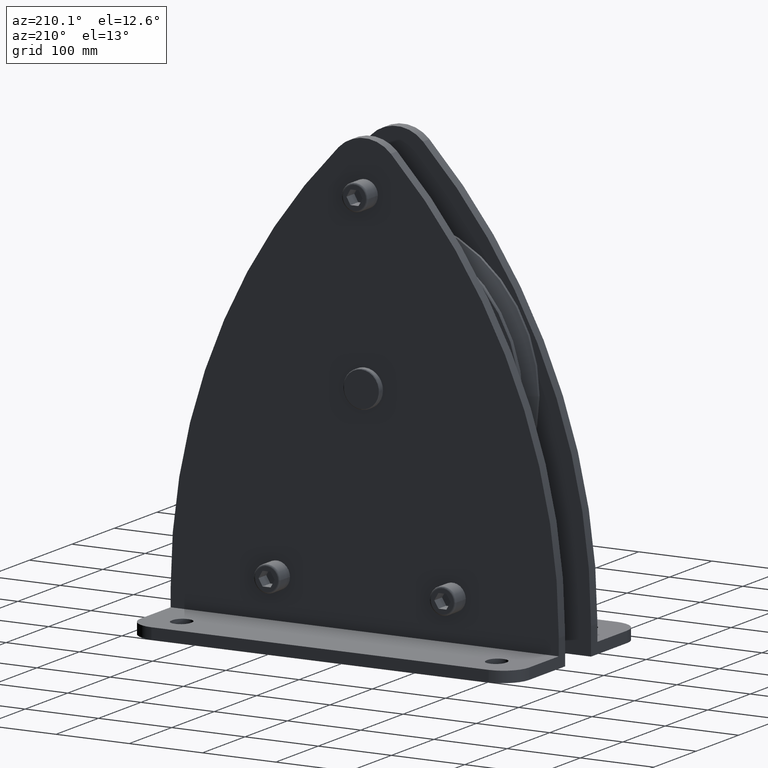
[diagram: clean part render]
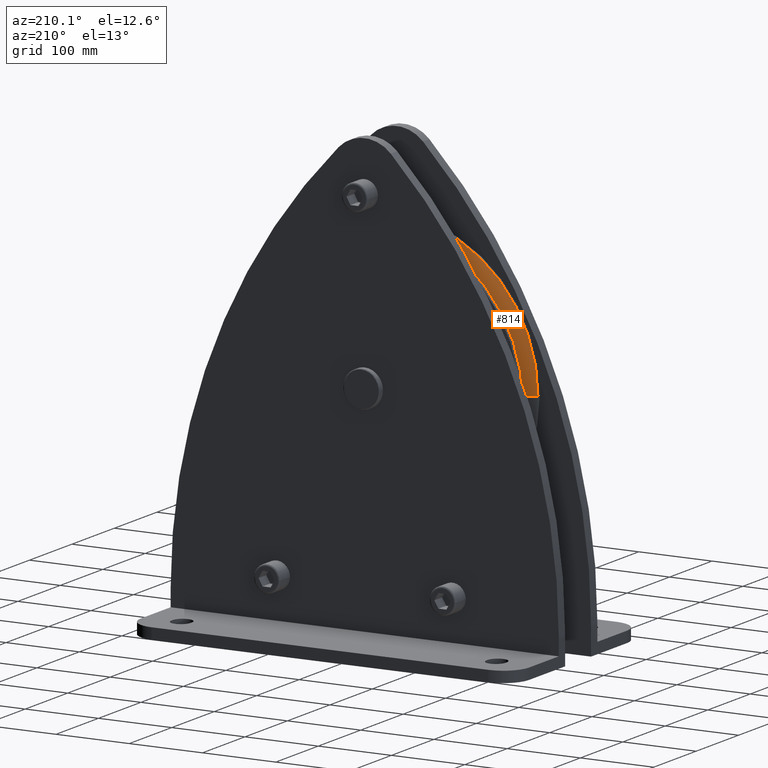
[diagram: same view with one face highlighted and labeled with its STEP entity id]
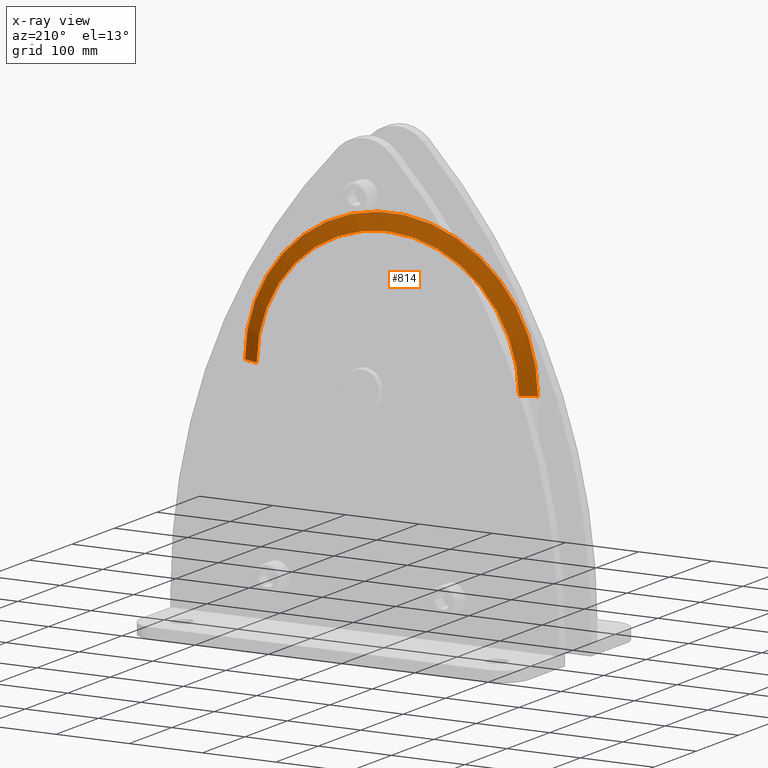
[diagram: x-ray of the same camera — body ghosted, the highlighted face saturated]
A machine part, auxiliary view. The second image highlights one B-rep face of the part: STEP entity #814.
The next image is the same camera in x-ray: the body ghosted, the highlighted face saturated — about 0% of this face is hidden behind the body in this view.
In plain terms, the highlighted conical surface has half-angle 67.5 deg.
Its self-contained STEP definition (entity closure, byte-faithful):
#814=ADVANCED_FACE('',(#2194),#2195,.T.);
#2194=FACE_OUTER_BOUND('',#4226,.T.);
#2195=CONICAL_SURFACE('',#4227,189.4939855,1.17809722010449);
#4226=EDGE_LOOP('',(#6772,#6773,#6774,#6775));
#4227=AXIS2_PLACEMENT_3D('',#6776,#6777,#6778);
#6772=ORIENTED_EDGE('',*,*,#12535,.F.);
#6773=ORIENTED_EDGE('',*,*,#12155,.T.);
#6774=ORIENTED_EDGE('',*,*,#12536,.F.);
#6775=ORIENTED_EDGE('',*,*,#12482,.F.);
#6776=CARTESIAN_POINT('',(0.0,-13.313365,0.0));
#6777=DIRECTION('',(-0.0,-1.0,0.0));
#6778=DIRECTION('',(1.0,0.0,0.0));
#12155=EDGE_CURVE('',#14606,#14604,#14607,.T.);
#12482=EDGE_CURVE('',#15153,#15156,#15157,.T.);
#12535=EDGE_CURVE('',#14606,#15153,#15237,.T.);
#12536=EDGE_CURVE('',#15156,#14604,#15238,.T.);
#14604=VERTEX_POINT('',#19361);
#14606=VERTEX_POINT('',#19363);
#14607=CIRCLE('',#19364,178.987971);
#15153=VERTEX_POINT('',#21991);
#15156=VERTEX_POINT('',#21995);
#15157=CIRCLE('',#21996,200.0);
#15237=LINE('',#22093,#22094);
#15238=LINE('',#22095,#22096);
#19361=CARTESIAN_POINT('',(-178.987971,-8.961631,2.19197045771029E-014));
#19363=CARTESIAN_POINT('',(178.987971,-8.961631,0.0));
#19364=AXIS2_PLACEMENT_3D('',#26921,#26922,#26923);
#21991=CARTESIAN_POINT('',(200.0,-17.665099,0.0));
#21995=CARTESIAN_POINT('',(-200.0,-17.665099,2.44929359829471E-014));
#21996=AXIS2_PLACEMENT_3D('',#27376,#27377,#27378);
#22093=CARTESIAN_POINT('',(189.4939855,-13.313365,-2.3206320280025E-014));
#22094=VECTOR('',#27465,1.0);
#22095=CARTESIAN_POINT('',(-189.4939855,-13.313365,2.3206320280025E-014));
#22096=VECTOR('',#27466,1.0);
#26921=CARTESIAN_POINT('',(0.0,-8.961631,0.0));
#26922=DIRECTION('',(0.0,-1.0,0.0));
#26923=DIRECTION('',(1.0,0.0,0.0));
#27376=CARTESIAN_POINT('',(0.0,-17.665099,0.0));
#27377=DIRECTION('',(0.0,-1.0,0.0));
#27378=DIRECTION('',(1.0,0.0,0.0));
#27465=DIRECTION('',(0.923879522947386,-0.382683455454389,-1.1314261005753E-016));
#27466=DIRECTION('',(0.923879522947386,0.382683455454389,-1.1314261005753E-016));